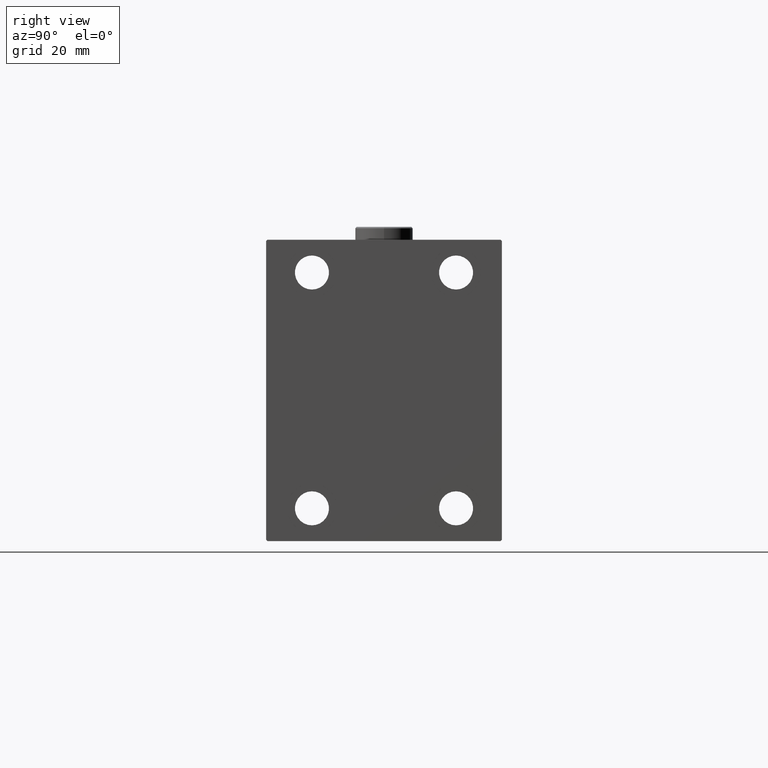
[diagram: clean part render]
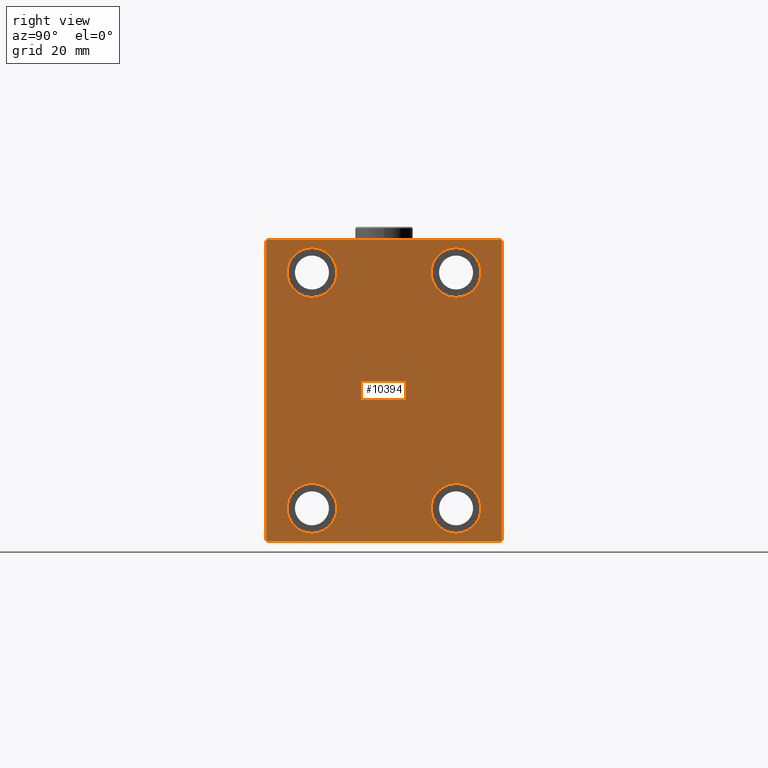
[diagram: same view with one face highlighted and labeled with its STEP entity id]
A machine part, right view. The second image highlights one B-rep face of the part: STEP entity #10394.
In plain terms, the highlighted planar face has unit normal (1, 0, 0).
Its self-contained STEP definition (entity closure, byte-faithful):
#149 = DIRECTION ( 'NONE',  ( 0.000000000000000000, 0.000000000000000000, -1.000000000000000000 ) ) ;
#422 = VECTOR ( 'NONE', #22063, 1000.000000000000000 ) ;
#586 = VERTEX_POINT ( 'NONE', #1477 ) ;
#1016 = CARTESIAN_POINT ( 'NONE',  ( 138.0000000000000000, -45.00000000000000000, -57.00000000000000711 ) ) ;
#1333 = VERTEX_POINT ( 'NONE', #43415 ) ;
#1477 = CARTESIAN_POINT ( 'NONE',  ( 138.0000000000000000, 27.49999999999998934, -35.49999999999998579 ) ) ;
#1651 = CARTESIAN_POINT ( 'NONE',  ( 138.0000000000000000, -27.49999999999998934, 45.00000000000000711 ) ) ;
#1810 = CARTESIAN_POINT ( 'NONE',  ( 138.0000000000000000, 27.49999999999998934, -54.49999999999998579 ) ) ;
#2392 = FACE_BOUND ( 'NONE', #11651, .T. ) ;
#2505 = DIRECTION ( 'NONE',  ( 0.000000000000000000, 0.000000000000000000, 1.000000000000000000 ) ) ;
#3538 = AXIS2_PLACEMENT_3D ( 'NONE', #42696, #7689, #5680 ) ;
#3764 = AXIS2_PLACEMENT_3D ( 'NONE', #21168, #9726, #28212 ) ;
#4205 = DIRECTION ( 'NONE',  ( 0.000000000000000000, 0.000000000000000000, 1.000000000000000000 ) ) ;
#5554 = VERTEX_POINT ( 'NONE', #16714 ) ;
#5680 = DIRECTION ( 'NONE',  ( 0.000000000000000000, 0.000000000000000000, 1.000000000000000000 ) ) ;
#6820 = EDGE_CURVE ( 'NONE', #27177, #34522, #13746, .T. ) ;
#6991 = EDGE_CURVE ( 'NONE', #12891, #27177, #26586, .T. ) ;
#7006 = CARTESIAN_POINT ( 'NONE',  ( 138.0000000000000000, 45.00000000000000000, 57.50000000000000711 ) ) ;
#7078 = AXIS2_PLACEMENT_3D ( 'NONE', #32337, #28657, #149 ) ;
#7097 = CARTESIAN_POINT ( 'NONE',  ( 138.0000000000000000, 45.00000000000000000, 56.99999999999997868 ) ) ;
#7501 = VERTEX_POINT ( 'NONE', #36909 ) ;
#7689 = DIRECTION ( 'NONE',  ( -1.000000000000000000, -0.000000000000000000, -0.000000000000000000 ) ) ;
#8211 = CARTESIAN_POINT ( 'NONE',  ( 138.0000000000000000, -45.00000000000000000, 57.49999999999999289 ) ) ;
#8827 = ORIENTED_EDGE ( 'NONE', *, *, #39276, .T. ) ;
#9234 = ORIENTED_EDGE ( 'NONE', *, *, #25018, .T. ) ;
#9726 = DIRECTION ( 'NONE',  ( -1.000000000000000000, -0.000000000000000000, -0.000000000000000000 ) ) ;
#9735 = CARTESIAN_POINT ( 'NONE',  ( 138.0000000000000000, -51.00000000000000711, 51.00000000000000711 ) ) ;
#9810 = CARTESIAN_POINT ( 'NONE',  ( 138.0000000000000000, 27.50000000000001066, 45.00000000000000711 ) ) ;
#10073 = CARTESIAN_POINT ( 'NONE',  ( 138.0000000000000000, -44.50000000000000000, 57.49999999999999289 ) ) ;
#10157 = ORIENTED_EDGE ( 'NONE', *, *, #16086, .T. ) ;
#10394 = ADVANCED_FACE ( 'NONE', ( #2392, #32095, #46945, #21142, #17469 ), #35993, .T. ) ;
#11202 = CIRCLE ( 'NONE', #22889, 9.500000000000001776 ) ;
#11651 = EDGE_LOOP ( 'NONE', ( #26181, #33293 ) ) ;
#12265 = AXIS2_PLACEMENT_3D ( 'NONE', #9810, #24646, #2505 ) ;
#12792 = ORIENTED_EDGE ( 'NONE', *, *, #24820, .T. ) ;
#12891 = VERTEX_POINT ( 'NONE', #1016 ) ;
#13746 = LINE ( 'NONE', #31515, #24875 ) ;
#13762 = ORIENTED_EDGE ( 'NONE', *, *, #17542, .T. ) ;
#13863 = VERTEX_POINT ( 'NONE', #28563 ) ;
#13980 = VECTOR ( 'NONE', #22952, 1000.000000000000114 ) ;
#14552 = DIRECTION ( 'NONE',  ( 0.000000000000000000, -1.000000000000000000, -1.541976423090495387E-16 ) ) ;
#15542 = CARTESIAN_POINT ( 'NONE',  ( 138.0000000000000000, 51.00000000000000000, 51.00000000000000000 ) ) ;
#15902 = VERTEX_POINT ( 'NONE', #10073 ) ;
#16086 = EDGE_CURVE ( 'NONE', #38526, #15902, #24789, .T. ) ;
#16714 = CARTESIAN_POINT ( 'NONE',  ( 138.0000000000000000, -45.00000000000000000, 57.00000000000002132 ) ) ;
#16905 = DIRECTION ( 'NONE',  ( 0.000000000000000000, 1.000000000000000000, 0.000000000000000000 ) ) ;
#17380 = DIRECTION ( 'NONE',  ( 0.000000000000000000, 0.000000000000000000, -1.000000000000000000 ) ) ;
#17406 = DIRECTION ( 'NONE',  ( -1.000000000000000000, -0.000000000000000000, -0.000000000000000000 ) ) ;
#17469 = FACE_OUTER_BOUND ( 'NONE', #25087, .T. ) ;
#17542 = EDGE_CURVE ( 'NONE', #15902, #5554, #43099, .T. ) ;
#17648 = CIRCLE ( 'NONE', #30883, 9.500000000000001776 ) ;
#18306 = CARTESIAN_POINT ( 'NONE',  ( 138.0000000000000000, -44.50000000000000000, -57.50000000000000711 ) ) ;
#18583 = EDGE_CURVE ( 'NONE', #38662, #46812, #11202, .T. ) ;
#18887 = LINE ( 'NONE', #33988, #422 ) ;
#19762 = AXIS2_PLACEMENT_3D ( 'NONE', #42743, #39095, #35437 ) ;
#19911 = DIRECTION ( 'NONE',  ( -1.000000000000000000, -0.000000000000000000, -0.000000000000000000 ) ) ;
#20655 = CIRCLE ( 'NONE', #3538, 9.500000000000001776 ) ;
#21001 = ORIENTED_EDGE ( 'NONE', *, *, #44093, .T. ) ;
#21013 = EDGE_CURVE ( 'NONE', #38604, #586, #43067, .T. ) ;
#21094 = EDGE_CURVE ( 'NONE', #13863, #1333, #25967, .T. ) ;
#21142 = FACE_BOUND ( 'NONE', #46212, .T. ) ;
#21168 = CARTESIAN_POINT ( 'NONE',  ( 138.0000000000000000, -27.49999999999998934, 45.00000000000000711 ) ) ;
#21925 = EDGE_CURVE ( 'NONE', #47100, #38526, #27628, .T. ) ;
#22049 = AXIS2_PLACEMENT_3D ( 'NONE', #33249, #22053, #37878 ) ;
#22053 = DIRECTION ( 'NONE',  ( -1.000000000000000000, -0.000000000000000000, -0.000000000000000000 ) ) ;
#22063 = DIRECTION ( 'NONE',  ( 0.000000000000000000, -1.206764157201257045E-16, 1.000000000000000000 ) ) ;
#22463 = VERTEX_POINT ( 'NONE', #29437 ) ;
#22703 = CARTESIAN_POINT ( 'NONE',  ( 138.0000000000000000, 27.50000000000001066, 45.00000000000000711 ) ) ;
#22889 = AXIS2_PLACEMENT_3D ( 'NONE', #1651, #19911, #42323 ) ;
#22952 = DIRECTION ( 'NONE',  ( -0.000000000000000000, 0.7071067811865474617, -0.7071067811865474617 ) ) ;
#23706 = VECTOR ( 'NONE', #46059, 1000.000000000000114 ) ;
#24449 = LINE ( 'NONE', #8211, #28785 ) ;
#24575 = DIRECTION ( 'NONE',  ( 0.000000000000000000, -0.7071067811865474617, -0.7071067811865474617 ) ) ;
#24646 = DIRECTION ( 'NONE',  ( -1.000000000000000000, -0.000000000000000000, -0.000000000000000000 ) ) ;
#24789 = LINE ( 'NONE', #7006, #36828 ) ;
#24820 = EDGE_CURVE ( 'NONE', #37022, #47100, #18887, .T. ) ;
#24875 = VECTOR ( 'NONE', #16905, 1000.000000000000000 ) ;
#25018 = EDGE_CURVE ( 'NONE', #1333, #13863, #45514, .T. ) ;
#25087 = EDGE_LOOP ( 'NONE', ( #10157, #13762, #21001, #39747, #30818, #27499, #12792, #38474 ) ) ;
#25182 = VECTOR ( 'NONE', #24575, 1000.000000000000114 ) ;
#25648 = CARTESIAN_POINT ( 'NONE',  ( 138.0000000000000000, 44.49999999999998579, -57.50000000000000711 ) ) ;
#25967 = CIRCLE ( 'NONE', #19762, 9.500000000000001776 ) ;
#25991 = ORIENTED_EDGE ( 'NONE', *, *, #37007, .T. ) ;
#26181 = ORIENTED_EDGE ( 'NONE', *, *, #21013, .T. ) ;
#26586 = LINE ( 'NONE', #27064, #13980 ) ;
#26847 = CARTESIAN_POINT ( 'NONE',  ( 138.0000000000000000, -27.49999999999998934, 35.50000000000000711 ) ) ;
#27064 = CARTESIAN_POINT ( 'NONE',  ( 138.0000000000000000, -51.00000000000000000, -51.00000000000000000 ) ) ;
#27177 = VERTEX_POINT ( 'NONE', #18306 ) ;
#27320 = EDGE_CURVE ( 'NONE', #34522, #37022, #38755, .T. ) ;
#27499 = ORIENTED_EDGE ( 'NONE', *, *, #27320, .T. ) ;
#27628 = LINE ( 'NONE', #15542, #33759 ) ;
#27868 = DIRECTION ( 'NONE',  ( -0.000000000000000000, -0.7071067811865474617, 0.7071067811865474617 ) ) ;
#28037 = EDGE_CURVE ( 'NONE', #586, #38604, #20655, .T. ) ;
#28212 = DIRECTION ( 'NONE',  ( 0.000000000000000000, 0.000000000000000000, 1.000000000000000000 ) ) ;
#28531 = CARTESIAN_POINT ( 'NONE',  ( 138.0000000000000000, 45.00000000000001421, -57.00000000000000711 ) ) ;
#28563 = CARTESIAN_POINT ( 'NONE',  ( 138.0000000000000000, -27.50000000000000000, -54.49999999999998579 ) ) ;
#28650 = CIRCLE ( 'NONE', #3764, 9.500000000000001776 ) ;
#28657 = DIRECTION ( 'NONE',  ( 1.000000000000000000, 0.000000000000000000, 0.000000000000000000 ) ) ;
#28785 = VECTOR ( 'NONE', #17380, 1000.000000000000000 ) ;
#29437 = CARTESIAN_POINT ( 'NONE',  ( 138.0000000000000000, 27.50000000000001066, 54.50000000000000711 ) ) ;
#29802 = ORIENTED_EDGE ( 'NONE', *, *, #32931, .T. ) ;
#30716 = CARTESIAN_POINT ( 'NONE',  ( 138.0000000000000000, 51.00000000000000711, -51.00000000000000711 ) ) ;
#30818 = ORIENTED_EDGE ( 'NONE', *, *, #6820, .T. ) ;
#30883 = AXIS2_PLACEMENT_3D ( 'NONE', #22703, #37573, #4205 ) ;
#31466 = EDGE_LOOP ( 'NONE', ( #8827, #44978 ) ) ;
#31515 = CARTESIAN_POINT ( 'NONE',  ( 138.0000000000000000, -45.00000000000000000, -57.50000000000000711 ) ) ;
#32095 = FACE_BOUND ( 'NONE', #31466, .T. ) ;
#32337 = CARTESIAN_POINT ( 'NONE',  ( 138.0000000000000000, 0.000000000000000000, 0.000000000000000000 ) ) ;
#32931 = EDGE_CURVE ( 'NONE', #7501, #22463, #17648, .T. ) ;
#33249 = CARTESIAN_POINT ( 'NONE',  ( 138.0000000000000000, 27.49999999999998934, -44.99999999999998579 ) ) ;
#33293 = ORIENTED_EDGE ( 'NONE', *, *, #28037, .T. ) ;
#33489 = ORIENTED_EDGE ( 'NONE', *, *, #21094, .T. ) ;
#33759 = VECTOR ( 'NONE', #27868, 1000.000000000000114 ) ;
#33988 = CARTESIAN_POINT ( 'NONE',  ( 138.0000000000000000, 45.00000000000001421, -57.50000000000000711 ) ) ;
#34522 = VERTEX_POINT ( 'NONE', #25648 ) ;
#35437 = DIRECTION ( 'NONE',  ( 0.000000000000000000, 0.000000000000000000, 1.000000000000000000 ) ) ;
#35993 = PLANE ( 'NONE',  #7078 ) ;
#36828 = VECTOR ( 'NONE', #14552, 1000.000000000000000 ) ;
#36909 = CARTESIAN_POINT ( 'NONE',  ( 138.0000000000000000, 27.50000000000001066, 35.50000000000000711 ) ) ;
#37007 = EDGE_CURVE ( 'NONE', #22463, #7501, #40987, .T. ) ;
#37022 = VERTEX_POINT ( 'NONE', #28531 ) ;
#37573 = DIRECTION ( 'NONE',  ( -1.000000000000000000, -0.000000000000000000, -0.000000000000000000 ) ) ;
#37878 = DIRECTION ( 'NONE',  ( 0.000000000000000000, 0.000000000000000000, 1.000000000000000000 ) ) ;
#38474 = ORIENTED_EDGE ( 'NONE', *, *, #21925, .T. ) ;
#38526 = VERTEX_POINT ( 'NONE', #44917 ) ;
#38546 = AXIS2_PLACEMENT_3D ( 'NONE', #39582, #17406, #43462 ) ;
#38604 = VERTEX_POINT ( 'NONE', #1810 ) ;
#38662 = VERTEX_POINT ( 'NONE', #42242 ) ;
#38755 = LINE ( 'NONE', #30716, #23706 ) ;
#39095 = DIRECTION ( 'NONE',  ( -1.000000000000000000, -0.000000000000000000, -0.000000000000000000 ) ) ;
#39276 = EDGE_CURVE ( 'NONE', #46812, #38662, #28650, .T. ) ;
#39582 = CARTESIAN_POINT ( 'NONE',  ( 138.0000000000000000, -27.50000000000000000, -44.99999999999998579 ) ) ;
#39747 = ORIENTED_EDGE ( 'NONE', *, *, #6991, .T. ) ;
#40099 = EDGE_LOOP ( 'NONE', ( #29802, #25991 ) ) ;
#40987 = CIRCLE ( 'NONE', #12265, 9.500000000000001776 ) ;
#42242 = CARTESIAN_POINT ( 'NONE',  ( 138.0000000000000000, -27.49999999999998934, 54.50000000000000711 ) ) ;
#42323 = DIRECTION ( 'NONE',  ( 0.000000000000000000, 0.000000000000000000, 1.000000000000000000 ) ) ;
#42696 = CARTESIAN_POINT ( 'NONE',  ( 138.0000000000000000, 27.49999999999998934, -44.99999999999998579 ) ) ;
#42743 = CARTESIAN_POINT ( 'NONE',  ( 138.0000000000000000, -27.50000000000000000, -44.99999999999998579 ) ) ;
#43067 = CIRCLE ( 'NONE', #22049, 9.500000000000001776 ) ;
#43099 = LINE ( 'NONE', #9735, #25182 ) ;
#43415 = CARTESIAN_POINT ( 'NONE',  ( 138.0000000000000000, -27.50000000000000000, -35.49999999999998579 ) ) ;
#43462 = DIRECTION ( 'NONE',  ( 0.000000000000000000, 0.000000000000000000, 1.000000000000000000 ) ) ;
#44093 = EDGE_CURVE ( 'NONE', #5554, #12891, #24449, .T. ) ;
#44917 = CARTESIAN_POINT ( 'NONE',  ( 138.0000000000000000, 44.50000000000000000, 57.50000000000000711 ) ) ;
#44978 = ORIENTED_EDGE ( 'NONE', *, *, #18583, .T. ) ;
#45514 = CIRCLE ( 'NONE', #38546, 9.500000000000001776 ) ;
#46059 = DIRECTION ( 'NONE',  ( -0.000000000000000000, 0.7071067811865474617, 0.7071067811865474617 ) ) ;
#46212 = EDGE_LOOP ( 'NONE', ( #33489, #9234 ) ) ;
#46812 = VERTEX_POINT ( 'NONE', #26847 ) ;
#46945 = FACE_BOUND ( 'NONE', #40099, .T. ) ;
#47100 = VERTEX_POINT ( 'NONE', #7097 ) ;